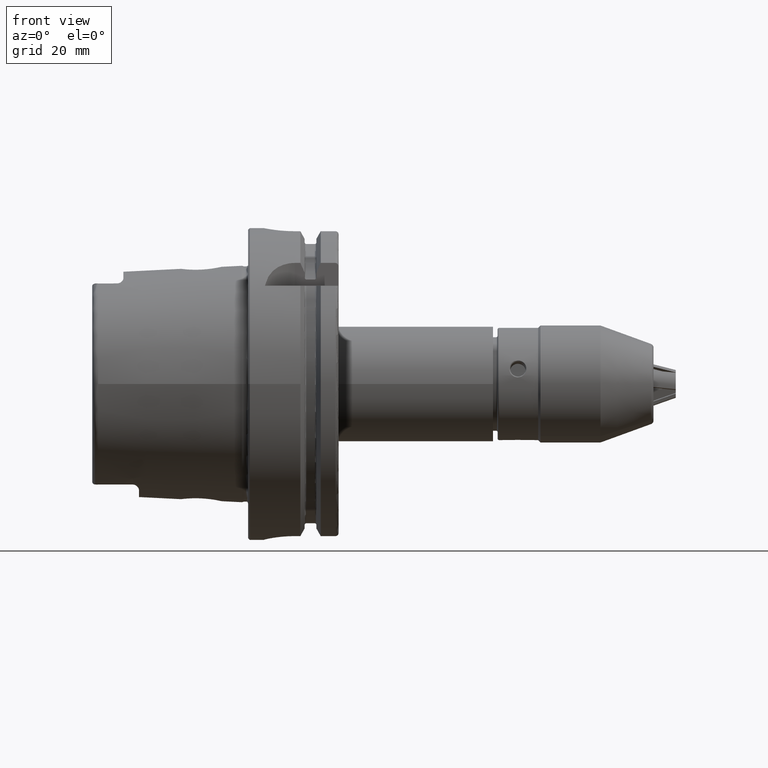
[diagram: clean part render]
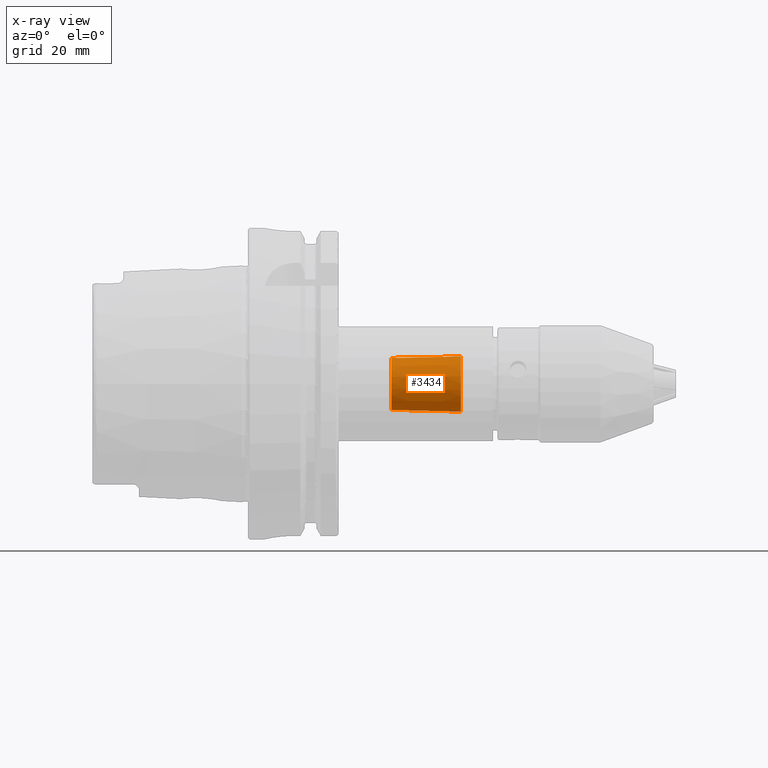
[diagram: x-ray — body ghosted, one internal face saturated and labeled with its STEP entity id]
A machine part, front view, then the same camera in x-ray: the body is ghosted and one INTERNAL B-rep face — a face not visible from any outside direction — is saturated and labeled: STEP entity #3434.
In plain terms, the highlighted conical surface has half-angle 1.431 deg.
Its self-contained STEP definition (entity closure, byte-faithful):
#623=CONICAL_SURFACE('',#4005,8.925,0.0249699020095006);
#864=FACE_OUTER_BOUND('',#1055,.T.);
#1055=EDGE_LOOP('',(#3104,#3105,#3106,#3107,#3108));
#1263=LINE('',#7132,#1440);
#1440=VECTOR('',#4949,8.925);
#1600=CIRCLE('',#4002,8.36992937793777);
#1603=CIRCLE('',#4006,8.925);
#1604=CIRCLE('',#4007,8.925);
#1880=VERTEX_POINT('',#7122);
#1882=VERTEX_POINT('',#7128);
#1883=VERTEX_POINT('',#7129);
#2294=EDGE_CURVE('',#1880,#1880,#1600,.T.);
#2297=EDGE_CURVE('',#1882,#1883,#1603,.T.);
#2298=EDGE_CURVE('',#1883,#1882,#1604,.T.);
#2299=EDGE_CURVE('',#1883,#1880,#1263,.T.);
#3104=ORIENTED_EDGE('',*,*,#2297,.F.);
#3105=ORIENTED_EDGE('',*,*,#2298,.F.);
#3106=ORIENTED_EDGE('',*,*,#2299,.T.);
#3107=ORIENTED_EDGE('',*,*,#2294,.T.);
#3108=ORIENTED_EDGE('',*,*,#2299,.F.);
#3434=ADVANCED_FACE('',(#864),#623,.T.);
#4002=AXIS2_PLACEMENT_3D('',#7123,#4937,#4938);
#4005=AXIS2_PLACEMENT_3D('',#7127,#4943,#4944);
#4006=AXIS2_PLACEMENT_3D('',#7130,#4945,#4946);
#4007=AXIS2_PLACEMENT_3D('',#7131,#4947,#4948);
#4937=DIRECTION('center_axis',(2.46519032881566E-32,-1.,-2.34193081237488E-30));
#4938=DIRECTION('ref_axis',(-5.77330518942196E-62,2.34193081237488E-30,
-1.));
#4943=DIRECTION('center_axis',(2.46519032881566E-32,-1.,-2.34193081237488E-30));
#4944=DIRECTION('ref_axis',(-5.77330518942196E-62,2.34193081237488E-30,
-1.));
#4945=DIRECTION('center_axis',(2.46519032881566E-32,-1.,-2.34193081237488E-30));
#4946=DIRECTION('ref_axis',(-5.77330518942196E-62,2.34193081237488E-30,
-1.));
#4947=DIRECTION('center_axis',(2.46519032881566E-32,-1.,-2.34193081237488E-30));
#4948=DIRECTION('ref_axis',(-5.77330518942196E-62,2.34193081237488E-30,
-1.));
#4949=DIRECTION('',(3.057613299035E-18,0.999688268194284,-0.0249673073180272));
#7122=CARTESIAN_POINT('',(-1.02502072217805E-15,54.024967307318,8.36992937793777));
#7123=CARTESIAN_POINT('Origin',(0.,54.024967307318,1.4791141972894E-28));
#7127=CARTESIAN_POINT('Origin',(4.93038065763132E-29,31.8,4.93038065763132E-29));
#7128=CARTESIAN_POINT('',(1.09299726823904E-15,31.8,-8.925));
#7129=CARTESIAN_POINT('',(-1.09299726823896E-15,31.8,8.925));
#7130=CARTESIAN_POINT('Origin',(4.93038065763132E-29,31.8,4.93038065763132E-29));
#7131=CARTESIAN_POINT('Origin',(4.93038065763132E-29,31.8,4.93038065763132E-29));
#7132=CARTESIAN_POINT('',(-1.09299726823896E-15,31.8,8.925));